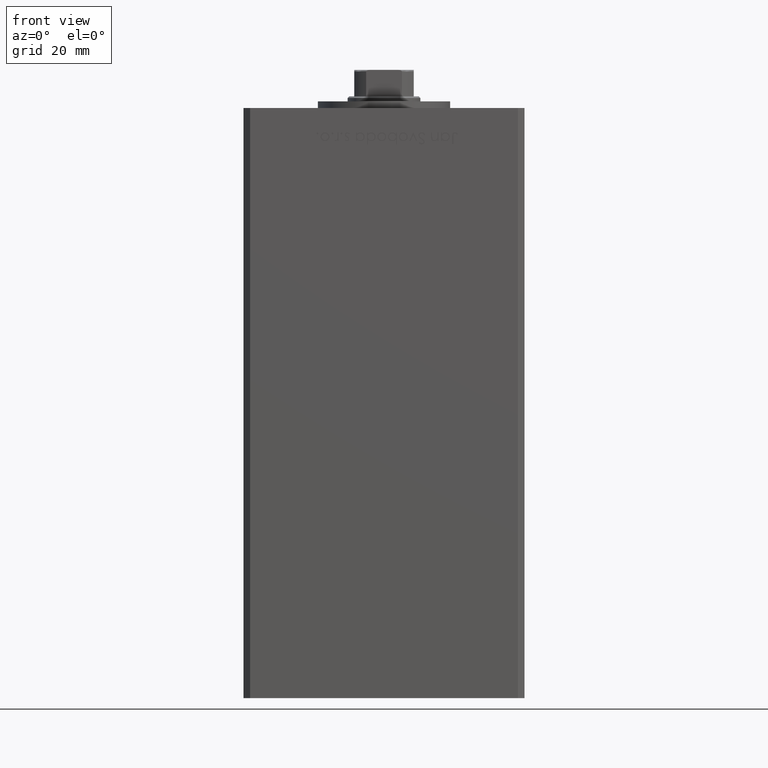
[diagram: clean part render]
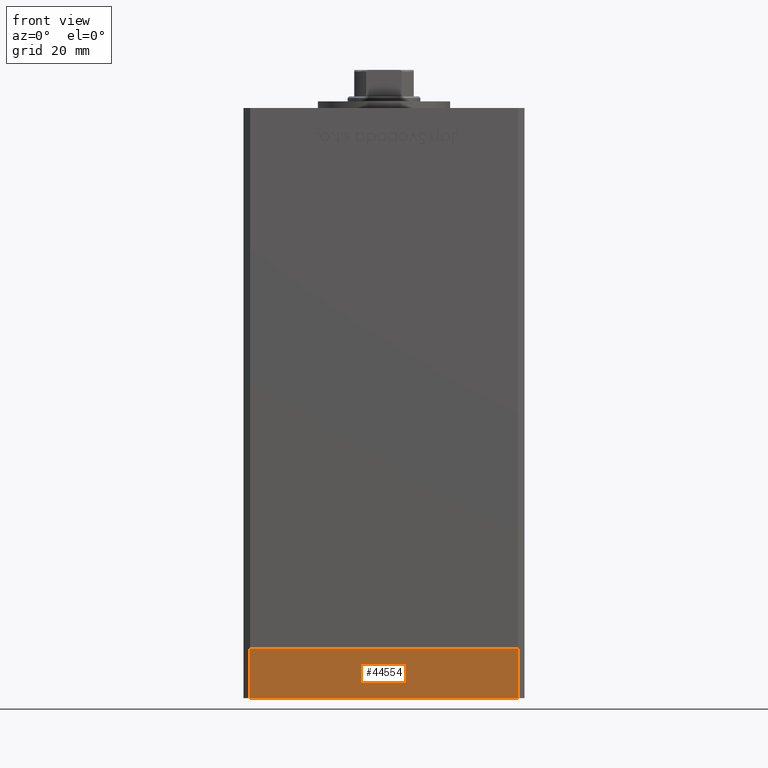
[diagram: same view with one face highlighted and labeled with its STEP entity id]
A machine part, front view. The second image highlights one B-rep face of the part: STEP entity #44554.
In plain terms, the highlighted planar face has unit normal (-0, -1, -0).
Its self-contained STEP definition (entity closure, byte-faithful):
#965 = LINE ( 'NONE', #25481, #30609 ) ;
#1051 = VECTOR ( 'NONE', #23394, 1000.000000000000000 ) ;
#1186 = ORIENTED_EDGE ( 'NONE', *, *, #26064, .T. ) ;
#1593 = EDGE_LOOP ( 'NONE', ( #49757, #41761, #3481, #1186 ) ) ;
#3481 = ORIENTED_EDGE ( 'NONE', *, *, #13680, .T. ) ;
#7326 = CARTESIAN_POINT ( 'NONE',  ( -40.49999999999999289, -37.50000000000002132, -15.00000000000000000 ) ) ;
#8851 = VERTEX_POINT ( 'NONE', #36089 ) ;
#8944 = DIRECTION ( 'NONE',  ( 1.000000000000000000, 1.713307136767217096E-16, 0.000000000000000000 ) ) ;
#9462 = PLANE ( 'NONE',  #33066 ) ;
#12206 = VECTOR ( 'NONE', #32950, 1000.000000000000000 ) ;
#13680 = EDGE_CURVE ( 'NONE', #22010, #8851, #965, .T. ) ;
#14207 = LINE ( 'NONE', #7326, #1051 ) ;
#17609 = DIRECTION ( 'NONE',  ( 1.713307136767217096E-16, -1.000000000000000000, 0.000000000000000000 ) ) ;
#21521 = DIRECTION ( 'NONE',  ( 1.000000000000000000, 1.713307136767217096E-16, 0.000000000000000000 ) ) ;
#22010 = VERTEX_POINT ( 'NONE', #39630 ) ;
#23265 = EDGE_CURVE ( 'NONE', #27655, #37438, #33731, .T. ) ;
#23394 = DIRECTION ( 'NONE',  ( 0.000000000000000000, 0.000000000000000000, 1.000000000000000000 ) ) ;
#25481 = CARTESIAN_POINT ( 'NONE',  ( -40.49999999999999289, -37.50000000000002132, -15.00000000000000000 ) ) ;
#26064 = EDGE_CURVE ( 'NONE', #8851, #37438, #33642, .T. ) ;
#27632 = CARTESIAN_POINT ( 'NONE',  ( -40.49999999999999289, -37.50000000000002132, 0.000000000000000000 ) ) ;
#27655 = VERTEX_POINT ( 'NONE', #27632 ) ;
#29676 = DIRECTION ( 'NONE',  ( 0.000000000000000000, 0.000000000000000000, 1.000000000000000000 ) ) ;
#30609 = VECTOR ( 'NONE', #21521, 1000.000000000000000 ) ;
#32950 = DIRECTION ( 'NONE',  ( 1.000000000000000000, 1.713307136767217096E-16, 0.000000000000000000 ) ) ;
#33066 = AXIS2_PLACEMENT_3D ( 'NONE', #41651, #17609, #8944 ) ;
#33642 = LINE ( 'NONE', #45011, #43440 ) ;
#33731 = LINE ( 'NONE', #45871, #12206 ) ;
#36089 = CARTESIAN_POINT ( 'NONE',  ( 40.50000000000000000, -37.50000000000000711, -15.00000000000000000 ) ) ;
#37438 = VERTEX_POINT ( 'NONE', #38445 ) ;
#38445 = CARTESIAN_POINT ( 'NONE',  ( 40.50000000000000000, -37.50000000000000711, 0.000000000000000000 ) ) ;
#39630 = CARTESIAN_POINT ( 'NONE',  ( -40.49999999999999289, -37.50000000000002132, -15.00000000000000000 ) ) ;
#41651 = CARTESIAN_POINT ( 'NONE',  ( -40.49999999999999289, -37.50000000000002132, -15.00000000000000000 ) ) ;
#41761 = ORIENTED_EDGE ( 'NONE', *, *, #44604, .F. ) ;
#43440 = VECTOR ( 'NONE', #29676, 1000.000000000000000 ) ;
#44554 = ADVANCED_FACE ( 'NONE', ( #45593 ), #9462, .T. ) ;
#44604 = EDGE_CURVE ( 'NONE', #22010, #27655, #14207, .T. ) ;
#45011 = CARTESIAN_POINT ( 'NONE',  ( 40.50000000000000000, -37.50000000000000711, -15.00000000000000000 ) ) ;
#45593 = FACE_OUTER_BOUND ( 'NONE', #1593, .T. ) ;
#45871 = CARTESIAN_POINT ( 'NONE',  ( -40.49999999999999289, -37.50000000000002132, 0.000000000000000000 ) ) ;
#49757 = ORIENTED_EDGE ( 'NONE', *, *, #23265, .F. ) ;